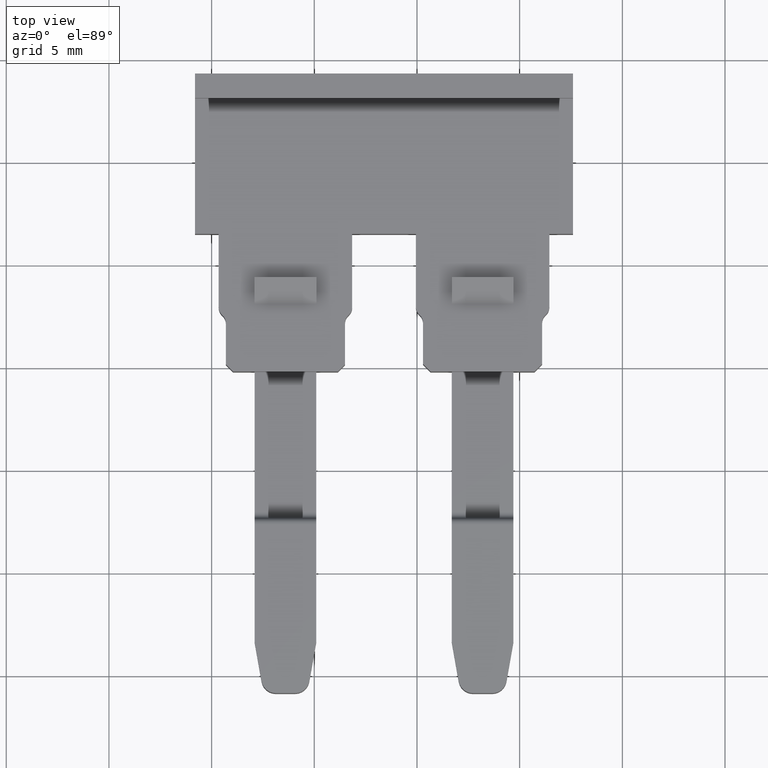
[diagram: clean part render]
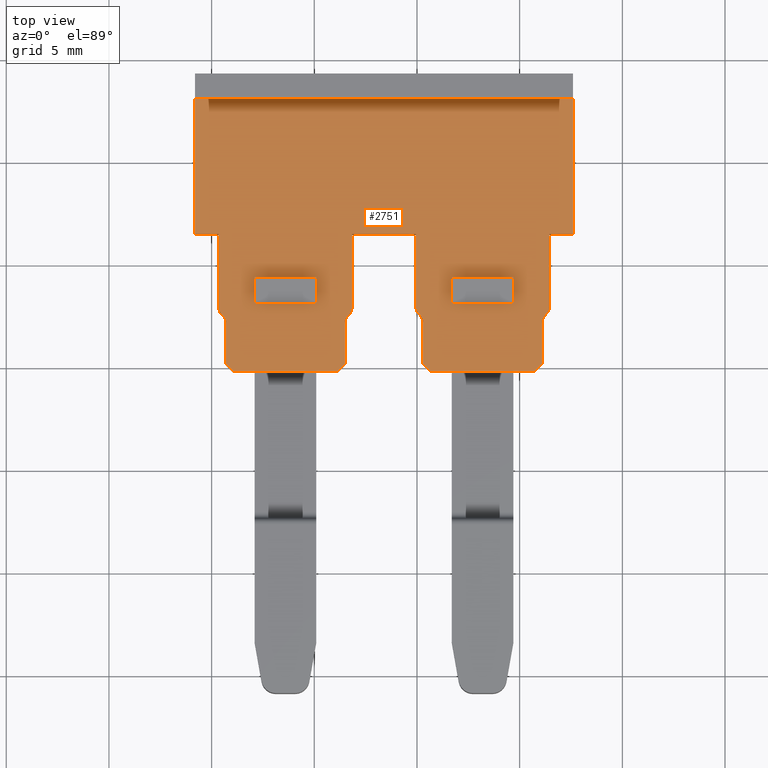
[diagram: same view with one face highlighted and labeled with its STEP entity id]
A machine part, top view. The second image highlights one B-rep face of the part: STEP entity #2751.
In plain terms, the highlighted planar face has unit normal (0, 0, -1).
Its self-contained STEP definition (entity closure, byte-faithful):
#7 = VECTOR ( 'NONE', #1052, 1000.000000000000000 ) ;
#14 = VECTOR ( 'NONE', #1072, 1000.000000000000000 ) ;
#15 = VECTOR ( 'NONE', #1033, 1000.000000000000000 ) ;
#16 = VECTOR ( 'NONE', #1014, 1000.000000000000000 ) ;
#18 = VECTOR ( 'NONE', #1043, 1000.000000000000000 ) ;
#19 = VECTOR ( 'NONE', #1063, 1000.000000000000000 ) ;
#20 = VECTOR ( 'NONE', #1075, 1000.000000000000000 ) ;
#30 = VECTOR ( 'NONE', #1012, 1000.000000000000100 ) ;
#33 = VECTOR ( 'NONE', #1060, 1000.000000000000000 ) ;
#39 = CIRCLE ( 'NONE', #49, 0.5000005154178754900 ) ;
#40 = AXIS2_PLACEMENT_3D ( 'NONE', #1148, #1168, #1171 ) ;
#45 = VECTOR ( 'NONE', #1207, 1000.000000000000000 ) ;
#49 = AXIS2_PLACEMENT_3D ( 'NONE', #1106, #1098, #1099 ) ;
#50 = CIRCLE ( 'NONE', #53, 0.5000005154178754900 ) ;
#53 = AXIS2_PLACEMENT_3D ( 'NONE', #1112, #1134, #1117 ) ;
#55 = VECTOR ( 'NONE', #1150, 1000.000000000000000 ) ;
#69 = VECTOR ( 'NONE', #1101, 1000.000000000000000 ) ;
#72 = VECTOR ( 'NONE', #1209, 1000.000000000000000 ) ;
#73 = VECTOR ( 'NONE', #1189, 1000.000000000000000 ) ;
#74 = CIRCLE ( 'NONE', #85, 0.5000005154178754900 ) ;
#76 = VECTOR ( 'NONE', #1179, 1000.000000000000000 ) ;
#81 = VECTOR ( 'NONE', #1210, 1000.000000000000100 ) ;
#84 = VECTOR ( 'NONE', #1241, 1000.000000000000100 ) ;
#85 = AXIS2_PLACEMENT_3D ( 'NONE', #1262, #1245, #1246 ) ;
#88 = CIRCLE ( 'NONE', #89, 0.5000005066464474600 ) ;
#89 = AXIS2_PLACEMENT_3D ( 'NONE', #1160, #1154, #1144 ) ;
#90 = CIRCLE ( 'NONE', #40, 0.5000005154178754900 ) ;
#95 = VECTOR ( 'NONE', #1263, 1000.000000000000000 ) ;
#104 = VECTOR ( 'NONE', #1251, 1000.000000000000000 ) ;
#107 = VECTOR ( 'NONE', #1305, 1000.000000000000000 ) ;
#110 = VECTOR ( 'NONE', #1327, 1000.000000000000000 ) ;
#111 = VECTOR ( 'NONE', #1281, 1000.000000000000000 ) ;
#115 = VECTOR ( 'NONE', #1393, 1000.000000000000000 ) ;
#116 = VECTOR ( 'NONE', #1336, 1000.000000000000000 ) ;
#119 = CIRCLE ( 'NONE', #120, 0.5000005066464474600 ) ;
#120 = AXIS2_PLACEMENT_3D ( 'NONE', #1360, #1320, #1335 ) ;
#122 = AXIS2_PLACEMENT_3D ( 'NONE', #1389, #1397, #1383 ) ;
#130 = VECTOR ( 'NONE', #1366, 1000.000000000000000 ) ;
#132 = VECTOR ( 'NONE', #1295, 1000.000000000000000 ) ;
#142 = VECTOR ( 'NONE', #1283, 1000.000000000000000 ) ;
#143 = VECTOR ( 'NONE', #1284, 1000.000000000000000 ) ;
#145 = CIRCLE ( 'NONE', #122, 0.5000005066464474600 ) ;
#149 = VECTOR ( 'NONE', #1369, 1000.000000000000000 ) ;
#155 = VECTOR ( 'NONE', #1341, 1000.000000000000100 ) ;
#157 = VECTOR ( 'NONE', #1322, 1000.000000000000000 ) ;
#268 = AXIS2_PLACEMENT_3D ( 'NONE', #666, #676, #637 ) ;
#287 = CIRCLE ( 'NONE', #342, 0.5000005066464474600 ) ;
#342 = AXIS2_PLACEMENT_3D ( 'NONE', #987, #988, #945 ) ;
#361 = VECTOR ( 'NONE', #1528, 1000.000000000000000 ) ;
#625 = FACE_BOUND ( 'NONE', #2524, .T. ) ;
#637 = DIRECTION ( 'NONE',  ( -1.000000000000000000, 0.0000000000000000000, -0.0000000000000000000 ) ) ;
#641 = PLANE ( 'NONE',  #268 ) ;
#642 = FACE_BOUND ( 'NONE', #1682, .T. ) ;
#665 = FACE_OUTER_BOUND ( 'NONE', #1673, .T. ) ;
#666 = CARTESIAN_POINT ( 'NONE',  ( 1146.994467408302400, 662.1736497164254200, 3.000000000000000000 ) ) ;
#676 = DIRECTION ( 'NONE',  ( 0.0000000000000000000, 0.0000000000000000000, -1.000000000000000000 ) ) ;
#945 = DIRECTION ( 'NONE',  ( -1.000000000000000000, 0.0000000000000000000, 0.0000000000000000000 ) ) ;
#987 = CARTESIAN_POINT ( 'NONE',  ( 1140.194468426628200, 662.1536497164254300, 3.000000000000000000 ) ) ;
#988 = DIRECTION ( 'NONE',  ( -0.0000000000000000000, -0.0000000000000000000, -1.000000000000000000 ) ) ;
#990 = CARTESIAN_POINT ( 'NONE',  ( 1140.694466376607100, 660.1392804752734900, 3.000000000000000000 ) ) ;
#1008 = LINE ( 'NONE', #1021, #16 ) ;
#1012 = DIRECTION ( 'NONE',  ( 0.7071067811865474600, -0.7071067811865474600, -0.0000000000000000000 ) ) ;
#1014 = DIRECTION ( 'NONE',  ( 0.7071156533801817900, 0.7070979088815909600, -0.0000000000000000000 ) ) ;
#1017 = LINE ( 'NONE', #1022, #18 ) ;
#1021 = CARTESIAN_POINT ( 'NONE',  ( 1146.698021157144000, 662.5643095299470800, 3.000000000000000000 ) ) ;
#1022 = CARTESIAN_POINT ( 'NONE',  ( 1146.494466901655900, 662.1736497164254200, 3.000000000000000000 ) ) ;
#1023 = LINE ( 'NONE', #1029, #15 ) ;
#1027 = LINE ( 'NONE', #990, #30 ) ;
#1029 = CARTESIAN_POINT ( 'NONE',  ( 1140.490914677786300, 662.5643095299470800, 3.000000000000000000 ) ) ;
#1033 = DIRECTION ( 'NONE',  ( 0.7071156533801817900, -0.7070979088815909600, -0.0000000000000000000 ) ) ;
#1034 = LINE ( 'NONE', #1087, #33 ) ;
#1043 = DIRECTION ( 'NONE',  ( -0.0000000000000000000, -1.000000000000000000, -0.0000000000000000000 ) ) ;
#1044 = CARTESIAN_POINT ( 'NONE',  ( 1146.844467917465200, 662.1736497164254200, 3.000000000000000000 ) ) ;
#1047 = LINE ( 'NONE', #1044, #14 ) ;
#1049 = CARTESIAN_POINT ( 'NONE',  ( 1140.344467917465200, 662.1736497164254200, 3.000000000000000000 ) ) ;
#1051 = CARTESIAN_POINT ( 'NONE',  ( 1146.844467917465200, 666.4912584401425900, 3.000000000000000000 ) ) ;
#1052 = DIRECTION ( 'NONE',  ( 1.000000000000000000, 0.0000000000000000000, 0.0000000000000000000 ) ) ;
#1060 = DIRECTION ( 'NONE',  ( 0.0000000000000000000, 1.000000000000000000, 0.0000000000000000000 ) ) ;
#1061 = LINE ( 'NONE', #1049, #20 ) ;
#1063 = DIRECTION ( 'NONE',  ( -1.000000000000000000, 0.0000000000000000000, 0.0000000000000000000 ) ) ;
#1067 = LINE ( 'NONE', #1051, #19 ) ;
#1072 = DIRECTION ( 'NONE',  ( -0.0000000000000000000, -1.000000000000000000, -0.0000000000000000000 ) ) ;
#1075 = DIRECTION ( 'NONE',  ( 0.0000000000000000000, 1.000000000000000000, 0.0000000000000000000 ) ) ;
#1076 = CARTESIAN_POINT ( 'NONE',  ( 1146.994467408302400, 666.4912584401425900, 3.000000000000000000 ) ) ;
#1087 = CARTESIAN_POINT ( 'NONE',  ( 1139.194470802330000, 662.1736497164254200, 3.000000000000000000 ) ) ;
#1090 = LINE ( 'NONE', #1076, #7 ) ;
#1098 = DIRECTION ( 'NONE',  ( -0.0000000000000000000, -0.0000000000000000000, -1.000000000000000000 ) ) ;
#1099 = DIRECTION ( 'NONE',  ( -1.000000000000000000, 0.0000000000000000000, 0.0000000000000000000 ) ) ;
#1101 = DIRECTION ( 'NONE',  ( 0.0000000000000000000, 1.000000000000000000, 0.0000000000000000000 ) ) ;
#1106 = CARTESIAN_POINT ( 'NONE',  ( 1140.844468432835100, 662.9178632849957500, 3.000000000000000000 ) ) ;
#1111 = CARTESIAN_POINT ( 'NONE',  ( 1140.694466376607100, 662.1736497164254200, 3.000000000000000000 ) ) ;
#1112 = CARTESIAN_POINT ( 'NONE',  ( 1155.944467402095400, 662.9378632849957300, 3.000000000000000000 ) ) ;
#1117 = DIRECTION ( 'NONE',  ( -1.000000000000000000, 0.0000000000000000000, 0.0000000000000000000 ) ) ;
#1118 = LINE ( 'NONE', #1170, #55 ) ;
#1131 = LINE ( 'NONE', #1111, #69 ) ;
#1134 = DIRECTION ( 'NONE',  ( -0.0000000000000000000, -0.0000000000000000000, -1.000000000000000000 ) ) ;
#1144 = DIRECTION ( 'NONE',  ( -1.000000000000000000, 0.0000000000000000000, 0.0000000000000000000 ) ) ;
#1148 = CARTESIAN_POINT ( 'NONE',  ( 1146.344467402095200, 662.9178632849957500, 3.000000000000000000 ) ) ;
#1150 = DIRECTION ( 'NONE',  ( 1.000000000000000000, 0.0000000000000000000, 0.0000000000000000000 ) ) ;
#1154 = DIRECTION ( 'NONE',  ( -0.0000000000000000000, -0.0000000000000000000, -1.000000000000000000 ) ) ;
#1159 = CARTESIAN_POINT ( 'NONE',  ( 1151.694467917465500, 663.0878760720547700, 3.000000000000000000 ) ) ;
#1160 = CARTESIAN_POINT ( 'NONE',  ( 1146.994467408302400, 662.1536497164254300, 3.000000000000000000 ) ) ;
#1161 = CARTESIAN_POINT ( 'NONE',  ( 1149.944467917465300, 662.1736497164254200, 3.000000000000000000 ) ) ;
#1168 = DIRECTION ( 'NONE',  ( -0.0000000000000000000, -0.0000000000000000000, -1.000000000000000000 ) ) ;
#1170 = CARTESIAN_POINT ( 'NONE',  ( 1146.994467408302400, 666.4912584401425900, 3.000000000000000000 ) ) ;
#1171 = DIRECTION ( 'NONE',  ( -1.000000000000000000, 0.0000000000000000000, 0.0000000000000000000 ) ) ;
#1178 = LINE ( 'NONE', #1161, #76 ) ;
#1179 = DIRECTION ( 'NONE',  ( 0.0000000000000000000, 1.000000000000000000, 0.0000000000000000000 ) ) ;
#1181 = LINE ( 'NONE', #1159, #45 ) ;
#1189 = DIRECTION ( 'NONE',  ( 1.000000000000000000, -0.0000000000000000000, 0.0000000000000000000 ) ) ;
#1193 = LINE ( 'NONE', #1195, #73 ) ;
#1195 = CARTESIAN_POINT ( 'NONE',  ( 1146.994467408302400, 673.0878760720547700, 3.000000000000000000 ) ) ;
#1200 = LINE ( 'NONE', #1206, #81 ) ;
#1206 = CARTESIAN_POINT ( 'NONE',  ( 1146.494469458323200, 660.1392804752734900, 3.000000000000000000 ) ) ;
#1207 = DIRECTION ( 'NONE',  ( 1.000000000000000000, 0.0000000000000000000, 0.0000000000000000000 ) ) ;
#1208 = LINE ( 'NONE', #1261, #84 ) ;
#1209 = DIRECTION ( 'NONE',  ( 0.7071156533801817900, -0.7070979088815909600, -0.0000000000000000000 ) ) ;
#1210 = DIRECTION ( 'NONE',  ( 0.7071067811865474600, 0.7071067811865474600, -0.0000000000000000000 ) ) ;
#1219 = CARTESIAN_POINT ( 'NONE',  ( 1150.090914677786500, 662.5843095299470600, 3.000000000000000000 ) ) ;
#1226 = LINE ( 'NONE', #1219, #72 ) ;
#1241 = DIRECTION ( 'NONE',  ( 0.7071067811865474600, 0.7071067811865474600, -0.0000000000000000000 ) ) ;
#1243 = LINE ( 'NONE', #1258, #95 ) ;
#1245 = DIRECTION ( 'NONE',  ( -0.0000000000000000000, -0.0000000000000000000, -1.000000000000000000 ) ) ;
#1246 = DIRECTION ( 'NONE',  ( -1.000000000000000000, 0.0000000000000000000, 0.0000000000000000000 ) ) ;
#1251 = DIRECTION ( 'NONE',  ( 0.0000000000000000000, 1.000000000000000000, -3.336006684570865400E-016 ) ) ;
#1258 = CARTESIAN_POINT ( 'NONE',  ( 1156.298021157144100, 662.5843095299470600, 3.000000000000000000 ) ) ;
#1261 = CARTESIAN_POINT ( 'NONE',  ( 1156.094469458323600, 660.1592804752734800, 3.000000000000000000 ) ) ;
#1262 = CARTESIAN_POINT ( 'NONE',  ( 1150.444468432835300, 662.9378632849957300, 3.000000000000000000 ) ) ;
#1263 = DIRECTION ( 'NONE',  ( 0.7071156533801817900, 0.7070979088815909600, -0.0000000000000000000 ) ) ;
#1273 = LINE ( 'NONE', #1275, #104 ) ;
#1274 = LINE ( 'NONE', #1285, #132 ) ;
#1275 = CARTESIAN_POINT ( 'NONE',  ( 1145.094467917465200, 663.0878760720547700, 3.000000000000000000 ) ) ;
#1281 = DIRECTION ( 'NONE',  ( 0.0000000000000000000, 1.000000000000000000, -3.336006684570865400E-016 ) ) ;
#1283 = DIRECTION ( 'NONE',  ( 0.0000000000000000000, 1.000000000000000000, -3.336006684570865400E-016 ) ) ;
#1284 = DIRECTION ( 'NONE',  ( -0.0000000000000000000, -1.000000000000000000, -0.0000000000000000000 ) ) ;
#1285 = CARTESIAN_POINT ( 'NONE',  ( 1146.994467408302400, 659.7892820011524000, 3.000000000000000000 ) ) ;
#1286 = CARTESIAN_POINT ( 'NONE',  ( 1156.094466901656000, 662.1736497164254200, 3.000000000000000000 ) ) ;
#1287 = LINE ( 'NONE', #1297, #107 ) ;
#1290 = CARTESIAN_POINT ( 'NONE',  ( 1151.694467917465500, 663.0878760720547700, 3.000000000000000000 ) ) ;
#1295 = DIRECTION ( 'NONE',  ( -1.000000000000000000, 0.0000000000000000000, -0.0000000000000000000 ) ) ;
#1297 = CARTESIAN_POINT ( 'NONE',  ( 1150.294466376607300, 662.1736497164254200, 3.000000000000000000 ) ) ;
#1303 = LINE ( 'NONE', #1319, #142 ) ;
#1305 = DIRECTION ( 'NONE',  ( 0.0000000000000000000, 1.000000000000000000, 0.0000000000000000000 ) ) ;
#1316 = LINE ( 'NONE', #1286, #143 ) ;
#1317 = LINE ( 'NONE', #1290, #111 ) ;
#1319 = CARTESIAN_POINT ( 'NONE',  ( 1142.094467917465400, 663.0878760720547700, 3.000000000000000000 ) ) ;
#1320 = DIRECTION ( 'NONE',  ( -0.0000000000000000000, -0.0000000000000000000, -1.000000000000000000 ) ) ;
#1322 = DIRECTION ( 'NONE',  ( 0.0000000000000000000, 1.000000000000000000, -3.336006684570865400E-016 ) ) ;
#1325 = CARTESIAN_POINT ( 'NONE',  ( 1142.094467917465400, 663.0878760720547700, 3.000000000000000000 ) ) ;
#1326 = CARTESIAN_POINT ( 'NONE',  ( 1156.444467917465300, 662.1736497164254200, 3.000000000000000000 ) ) ;
#1327 = DIRECTION ( 'NONE',  ( -0.0000000000000000000, -1.000000000000000000, -0.0000000000000000000 ) ) ;
#1333 = LINE ( 'NONE', #1340, #155 ) ;
#1335 = DIRECTION ( 'NONE',  ( -1.000000000000000000, 0.0000000000000000000, 0.0000000000000000000 ) ) ;
#1336 = DIRECTION ( 'NONE',  ( 1.000000000000000000, 0.0000000000000000000, 0.0000000000000000000 ) ) ;
#1338 = LINE ( 'NONE', #1365, #130 ) ;
#1340 = CARTESIAN_POINT ( 'NONE',  ( 1150.294466376607300, 660.1592804752734800, 3.000000000000000000 ) ) ;
#1341 = DIRECTION ( 'NONE',  ( 0.7071067811865474600, -0.7071067811865474600, -0.0000000000000000000 ) ) ;
#1347 = LINE ( 'NONE', #1381, #149 ) ;
#1351 = LINE ( 'NONE', #1359, #157 ) ;
#1353 = LINE ( 'NONE', #1326, #110 ) ;
#1358 = LINE ( 'NONE', #1325, #116 ) ;
#1359 = CARTESIAN_POINT ( 'NONE',  ( 1154.694467917465300, 663.0878760720547700, 3.000000000000000000 ) ) ;
#1360 = CARTESIAN_POINT ( 'NONE',  ( 1149.794468426628100, 662.1736497164254200, 3.000000000000000000 ) ) ;
#1365 = CARTESIAN_POINT ( 'NONE',  ( 1142.094467917465400, 664.3878760720547200, 2.999999999999999600 ) ) ;
#1366 = DIRECTION ( 'NONE',  ( 1.000000000000000000, 0.0000000000000000000, 0.0000000000000000000 ) ) ;
#1369 = DIRECTION ( 'NONE',  ( 1.000000000000000000, 0.0000000000000000000, 0.0000000000000000000 ) ) ;
#1373 = LINE ( 'NONE', #1391, #115 ) ;
#1381 = CARTESIAN_POINT ( 'NONE',  ( 1151.694467917465500, 664.3878760720547200, 2.999999999999999600 ) ) ;
#1383 = DIRECTION ( 'NONE',  ( -1.000000000000000000, 0.0000000000000000000, 0.0000000000000000000 ) ) ;
#1389 = CARTESIAN_POINT ( 'NONE',  ( 1156.594467408302300, 662.1736497164254200, 3.000000000000000000 ) ) ;
#1391 = CARTESIAN_POINT ( 'NONE',  ( 1146.994467408302400, 659.7892820011524000, 3.000000000000000000 ) ) ;
#1393 = DIRECTION ( 'NONE',  ( -1.000000000000000000, 0.0000000000000000000, 0.0000000000000000000 ) ) ;
#1397 = DIRECTION ( 'NONE',  ( -0.0000000000000000000, -0.0000000000000000000, -1.000000000000000000 ) ) ;
#1504 = LINE ( 'NONE', #1515, #361 ) ;
#1515 = CARTESIAN_POINT ( 'NONE',  ( 1157.594465032600300, 662.1736497164254200, 3.000000000000000000 ) ) ;
#1528 = DIRECTION ( 'NONE',  ( -0.0000000000000000000, -1.000000000000000000, -0.0000000000000000000 ) ) ;
#1673 = EDGE_LOOP ( 'NONE', ( #2166, #2142, #2177, #2095, #2207, #2106, #2175, #2128, #2183, #2174, #2131, #2152, #2145, #2116, #2135, #2202, #2107, #2120, #2182, #2119, #2138, #2149, #2133, #2111, #2112, #2136, #2211, #2140, #2092, #2115, #2122, #2172 ) ) ;
#1682 = EDGE_LOOP ( 'NONE', ( #2147, #2198, #2210, #2173 ) ) ;
#1702 = VERTEX_POINT ( 'NONE', #2370 ) ;
#1705 = VERTEX_POINT ( 'NONE', #2489 ) ;
#1706 = VERTEX_POINT ( 'NONE', #1851 ) ;
#1728 = VERTEX_POINT ( 'NONE', #2394 ) ;
#1731 = VERTEX_POINT ( 'NONE', #2365 ) ;
#1749 = VERTEX_POINT ( 'NONE', #2399 ) ;
#1755 = VERTEX_POINT ( 'NONE', #2384 ) ;
#1757 = VERTEX_POINT ( 'NONE', #2352 ) ;
#1759 = VERTEX_POINT ( 'NONE', #2374 ) ;
#1763 = VERTEX_POINT ( 'NONE', #2456 ) ;
#1765 = VERTEX_POINT ( 'NONE', #2428 ) ;
#1772 = VERTEX_POINT ( 'NONE', #2429 ) ;
#1774 = VERTEX_POINT ( 'NONE', #2413 ) ;
#1775 = VERTEX_POINT ( 'NONE', #2415 ) ;
#1776 = VERTEX_POINT ( 'NONE', #2426 ) ;
#1777 = VERTEX_POINT ( 'NONE', #2438 ) ;
#1778 = VERTEX_POINT ( 'NONE', #2417 ) ;
#1779 = VERTEX_POINT ( 'NONE', #2416 ) ;
#1780 = VERTEX_POINT ( 'NONE', #2453 ) ;
#1781 = VERTEX_POINT ( 'NONE', #2406 ) ;
#1782 = VERTEX_POINT ( 'NONE', #2420 ) ;
#1783 = VERTEX_POINT ( 'NONE', #2445 ) ;
#1785 = VERTEX_POINT ( 'NONE', #2427 ) ;
#1788 = VERTEX_POINT ( 'NONE', #2430 ) ;
#1790 = VERTEX_POINT ( 'NONE', #2462 ) ;
#1791 = VERTEX_POINT ( 'NONE', #2459 ) ;
#1793 = VERTEX_POINT ( 'NONE', #2439 ) ;
#1795 = VERTEX_POINT ( 'NONE', #2421 ) ;
#1798 = VERTEX_POINT ( 'NONE', #2408 ) ;
#1800 = VERTEX_POINT ( 'NONE', #2431 ) ;
#1801 = VERTEX_POINT ( 'NONE', #2422 ) ;
#1804 = VERTEX_POINT ( 'NONE', #2441 ) ;
#1808 = VERTEX_POINT ( 'NONE', #2448 ) ;
#1810 = VERTEX_POINT ( 'NONE', #2464 ) ;
#1812 = VERTEX_POINT ( 'NONE', #2435 ) ;
#1815 = VERTEX_POINT ( 'NONE', #2432 ) ;
#1816 = VERTEX_POINT ( 'NONE', #2433 ) ;
#1822 = VERTEX_POINT ( 'NONE', #2468 ) ;
#1825 = VERTEX_POINT ( 'NONE', #2425 ) ;
#1837 = VERTEX_POINT ( 'NONE', #2475 ) ;
#1851 = CARTESIAN_POINT ( 'NONE',  ( 1146.698018939051500, 662.5643073119101700, 3.000000000000000000 ) ) ;
#2092 = ORIENTED_EDGE ( 'NONE', *, *, #2588, .F. ) ;
#2095 = ORIENTED_EDGE ( 'NONE', *, *, #2634, .F. ) ;
#2106 = ORIENTED_EDGE ( 'NONE', *, *, #2662, .F. ) ;
#2107 = ORIENTED_EDGE ( 'NONE', *, *, #2578, .T. ) ;
#2111 = ORIENTED_EDGE ( 'NONE', *, *, #2624, .F. ) ;
#2112 = ORIENTED_EDGE ( 'NONE', *, *, #2606, .T. ) ;
#2115 = ORIENTED_EDGE ( 'NONE', *, *, #2552, .F. ) ;
#2116 = ORIENTED_EDGE ( 'NONE', *, *, #2876, .F. ) ;
#2118 = ORIENTED_EDGE ( 'NONE', *, *, #2620, .F. ) ;
#2119 = ORIENTED_EDGE ( 'NONE', *, *, #2540, .T. ) ;
#2120 = ORIENTED_EDGE ( 'NONE', *, *, #2557, .F. ) ;
#2121 = ORIENTED_EDGE ( 'NONE', *, *, #2628, .T. ) ;
#2122 = ORIENTED_EDGE ( 'NONE', *, *, #2553, .F. ) ;
#2123 = ORIENTED_EDGE ( 'NONE', *, *, #2650, .T. ) ;
#2127 = ORIENTED_EDGE ( 'NONE', *, *, #2639, .F. ) ;
#2128 = ORIENTED_EDGE ( 'NONE', *, *, #2629, .F. ) ;
#2131 = ORIENTED_EDGE ( 'NONE', *, *, #2574, .F. ) ;
#2133 = ORIENTED_EDGE ( 'NONE', *, *, #2539, .T. ) ;
#2135 = ORIENTED_EDGE ( 'NONE', *, *, #2599, .F. ) ;
#2136 = ORIENTED_EDGE ( 'NONE', *, *, #2543, .F. ) ;
#2138 = ORIENTED_EDGE ( 'NONE', *, *, #2829, .T. ) ;
#2140 = ORIENTED_EDGE ( 'NONE', *, *, #2536, .T. ) ;
#2142 = ORIENTED_EDGE ( 'NONE', *, *, #2598, .T. ) ;
#2145 = ORIENTED_EDGE ( 'NONE', *, *, #2547, .T. ) ;
#2147 = ORIENTED_EDGE ( 'NONE', *, *, #2603, .F. ) ;
#2149 = ORIENTED_EDGE ( 'NONE', *, *, #2572, .F. ) ;
#2152 = ORIENTED_EDGE ( 'NONE', *, *, #2641, .F. ) ;
#2166 = ORIENTED_EDGE ( 'NONE', *, *, #2611, .F. ) ;
#2172 = ORIENTED_EDGE ( 'NONE', *, *, #2584, .F. ) ;
#2173 = ORIENTED_EDGE ( 'NONE', *, *, #2646, .F. ) ;
#2174 = ORIENTED_EDGE ( 'NONE', *, *, #2617, .T. ) ;
#2175 = ORIENTED_EDGE ( 'NONE', *, *, #2608, .T. ) ;
#2177 = ORIENTED_EDGE ( 'NONE', *, *, #2648, .T. ) ;
#2182 = ORIENTED_EDGE ( 'NONE', *, *, #2573, .F. ) ;
#2183 = ORIENTED_EDGE ( 'NONE', *, *, #2659, .T. ) ;
#2198 = ORIENTED_EDGE ( 'NONE', *, *, #2626, .T. ) ;
#2202 = ORIENTED_EDGE ( 'NONE', *, *, #2550, .F. ) ;
#2207 = ORIENTED_EDGE ( 'NONE', *, *, #2651, .T. ) ;
#2210 = ORIENTED_EDGE ( 'NONE', *, *, #2657, .T. ) ;
#2211 = ORIENTED_EDGE ( 'NONE', *, *, #2579, .T. ) ;
#2352 = CARTESIAN_POINT ( 'NONE',  ( 1142.094467917465400, 664.3878760720547200, 3.000000000000000000 ) ) ;
#2365 = CARTESIAN_POINT ( 'NONE',  ( 1149.944467917465300, 666.4912584401425900, 3.000000000000000000 ) ) ;
#2370 = CARTESIAN_POINT ( 'NONE',  ( 1146.844467917465200, 666.4912584401425900, 3.000000000000000000 ) ) ;
#2374 = CARTESIAN_POINT ( 'NONE',  ( 1157.594465032600300, 666.4912584401425900, 3.000000000000000000 ) ) ;
#2384 = CARTESIAN_POINT ( 'NONE',  ( 1146.844467917465200, 662.9178667459766500, 3.000000000000000000 ) ) ;
#2394 = CARTESIAN_POINT ( 'NONE',  ( 1146.640918515522300, 662.5072083212701300, 3.000000000000000000 ) ) ;
#2399 = CARTESIAN_POINT ( 'NONE',  ( 1149.944467917441200, 662.9378632849957300, 3.000000000000000000 ) ) ;
#2406 = CARTESIAN_POINT ( 'NONE',  ( 1157.594465032600300, 673.0878760720547700, 3.000000000000000000 ) ) ;
#2408 = CARTESIAN_POINT ( 'NONE',  ( 1156.094466901656000, 662.1736497164254200, 3.000000000000000000 ) ) ;
#2413 = CARTESIAN_POINT ( 'NONE',  ( 1150.294466376607300, 660.1592804752734800, 3.000000000000000400 ) ) ;
#2415 = CARTESIAN_POINT ( 'NONE',  ( 1146.144470984202100, 659.7892820011524000, 3.000000000000000400 ) ) ;
#2416 = CARTESIAN_POINT ( 'NONE',  ( 1140.344467917441300, 662.9178632849957500, 3.000000000000000000 ) ) ;
#2417 = CARTESIAN_POINT ( 'NONE',  ( 1139.194470802330000, 666.4912584401425900, 3.000000000000000000 ) ) ;
#2420 = CARTESIAN_POINT ( 'NONE',  ( 1155.724470984202500, 659.7892820011524000, 3.000000000000000000 ) ) ;
#2421 = CARTESIAN_POINT ( 'NONE',  ( 1140.344467917465200, 666.4912584401425900, 3.000000000000000000 ) ) ;
#2422 = CARTESIAN_POINT ( 'NONE',  ( 1145.094467917465200, 663.0878760720547700, 3.000000000000000000 ) ) ;
#2425 = CARTESIAN_POINT ( 'NONE',  ( 1154.694467917465300, 664.3878760720547200, 2.999999999999999600 ) ) ;
#2426 = CARTESIAN_POINT ( 'NONE',  ( 1145.094467917465200, 664.3878760720547200, 2.999999999999999600 ) ) ;
#2427 = CARTESIAN_POINT ( 'NONE',  ( 1140.694467654940800, 662.1536497164254300, 3.000000000000000000 ) ) ;
#2428 = CARTESIAN_POINT ( 'NONE',  ( 1140.694466376607100, 660.1392804752734900, 3.000000000000000400 ) ) ;
#2429 = CARTESIAN_POINT ( 'NONE',  ( 1150.294467654940900, 662.1736497164254200, 3.000000000000000000 ) ) ;
#2430 = CARTESIAN_POINT ( 'NONE',  ( 1140.548017319408200, 662.5072083212701300, 3.000000000000000000 ) ) ;
#2431 = CARTESIAN_POINT ( 'NONE',  ( 1139.194470802330000, 673.0878760720547700, 3.000000000000000000 ) ) ;
#2432 = CARTESIAN_POINT ( 'NONE',  ( 1154.694467917465300, 663.0878760720547700, 3.000000000000000000 ) ) ;
#2433 = CARTESIAN_POINT ( 'NONE',  ( 1142.094467917465400, 663.0878760720547700, 3.000000000000000000 ) ) ;
#2435 = CARTESIAN_POINT ( 'NONE',  ( 1156.240918515522300, 662.5272083212702200, 3.000000000000000000 ) ) ;
#2438 = CARTESIAN_POINT ( 'NONE',  ( 1146.494466901655900, 662.1536497164254300, 3.000000000000000000 ) ) ;
#2439 = CARTESIAN_POINT ( 'NONE',  ( 1156.094468606100700, 660.1592796230510200, 3.000000000000000400 ) ) ;
#2441 = CARTESIAN_POINT ( 'NONE',  ( 1150.148017319408400, 662.5272083212702200, 3.000000000000000000 ) ) ;
#2445 = CARTESIAN_POINT ( 'NONE',  ( 1151.694467917465500, 663.0878760720547700, 3.000000000000000000 ) ) ;
#2448 = CARTESIAN_POINT ( 'NONE',  ( 1140.490916895879100, 662.5643073119101700, 3.000000000000000000 ) ) ;
#2453 = CARTESIAN_POINT ( 'NONE',  ( 1156.444467917465300, 662.9378667459767500, 3.000000000000000000 ) ) ;
#2456 = CARTESIAN_POINT ( 'NONE',  ( 1150.664464850728600, 659.7892820011524000, 3.000000000000000000 ) ) ;
#2459 = CARTESIAN_POINT ( 'NONE',  ( 1156.298018939051600, 662.5843073119102700, 3.000000000000000000 ) ) ;
#2462 = CARTESIAN_POINT ( 'NONE',  ( 1150.090916895878800, 662.5843073119102700, 3.000000000000000000 ) ) ;
#2464 = CARTESIAN_POINT ( 'NONE',  ( 1156.444467917465300, 666.4912584401425900, 3.000000000000000000 ) ) ;
#2468 = CARTESIAN_POINT ( 'NONE',  ( 1151.694467917465500, 664.3878760720547200, 3.000000000000000000 ) ) ;
#2475 = CARTESIAN_POINT ( 'NONE',  ( 1141.044464850728200, 659.7892820011524000, 3.000000000000000000 ) ) ;
#2489 = CARTESIAN_POINT ( 'NONE',  ( 1146.494468606101000, 660.1392796230510400, 3.000000000000000400 ) ) ;
#2524 = EDGE_LOOP ( 'NONE', ( #2127, #2121, #2123, #2118 ) ) ;
#2536 = EDGE_CURVE ( 'NONE', #1728, #1706, #1008, .T. ) ;
#2539 = EDGE_CURVE ( 'NONE', #1765, #1837, #1027, .T. ) ;
#2540 = EDGE_CURVE ( 'NONE', #1808, #1788, #1023, .T. ) ;
#2543 = EDGE_CURVE ( 'NONE', #1777, #1705, #1017, .T. ) ;
#2547 = EDGE_CURVE ( 'NONE', #1810, #1759, #1090, .T. ) ;
#2550 = EDGE_CURVE ( 'NONE', #1778, #1800, #1034, .T. ) ;
#2552 = EDGE_CURVE ( 'NONE', #1702, #1755, #1047, .T. ) ;
#2553 = EDGE_CURVE ( 'NONE', #1731, #1702, #1067, .T. ) ;
#2557 = EDGE_CURVE ( 'NONE', #1779, #1795, #1061, .T. ) ;
#2572 = EDGE_CURVE ( 'NONE', #1765, #1785, #1131, .T. ) ;
#2573 = EDGE_CURVE ( 'NONE', #1808, #1779, #39, .T. ) ;
#2574 = EDGE_CURVE ( 'NONE', #1780, #1791, #50, .T. ) ;
#2578 = EDGE_CURVE ( 'NONE', #1778, #1795, #1118, .T. ) ;
#2579 = EDGE_CURVE ( 'NONE', #1777, #1728, #88, .T. ) ;
#2584 = EDGE_CURVE ( 'NONE', #1749, #1731, #1178, .T. ) ;
#2588 = EDGE_CURVE ( 'NONE', #1755, #1706, #90, .T. ) ;
#2598 = EDGE_CURVE ( 'NONE', #1790, #1804, #1226, .T. ) ;
#2599 = EDGE_CURVE ( 'NONE', #1800, #1781, #1193, .T. ) ;
#2603 = EDGE_CURVE ( 'NONE', #1783, #1815, #1181, .T. ) ;
#2606 = EDGE_CURVE ( 'NONE', #1775, #1705, #1200, .T. ) ;
#2608 = EDGE_CURVE ( 'NONE', #1782, #1793, #1208, .T. ) ;
#2611 = EDGE_CURVE ( 'NONE', #1790, #1749, #74, .T. ) ;
#2617 = EDGE_CURVE ( 'NONE', #1812, #1791, #1243, .T. ) ;
#2620 = EDGE_CURVE ( 'NONE', #1801, #1776, #1273, .T. ) ;
#2624 = EDGE_CURVE ( 'NONE', #1775, #1837, #1274, .T. ) ;
#2626 = EDGE_CURVE ( 'NONE', #1783, #1822, #1317, .T. ) ;
#2628 = EDGE_CURVE ( 'NONE', #1816, #1757, #1303, .T. ) ;
#2629 = EDGE_CURVE ( 'NONE', #1798, #1793, #1316, .T. ) ;
#2634 = EDGE_CURVE ( 'NONE', #1774, #1772, #1287, .T. ) ;
#2639 = EDGE_CURVE ( 'NONE', #1816, #1801, #1358, .T. ) ;
#2641 = EDGE_CURVE ( 'NONE', #1810, #1780, #1353, .T. ) ;
#2646 = EDGE_CURVE ( 'NONE', #1815, #1825, #1351, .T. ) ;
#2648 = EDGE_CURVE ( 'NONE', #1804, #1772, #119, .T. ) ;
#2650 = EDGE_CURVE ( 'NONE', #1757, #1776, #1338, .T. ) ;
#2651 = EDGE_CURVE ( 'NONE', #1774, #1763, #1333, .T. ) ;
#2657 = EDGE_CURVE ( 'NONE', #1822, #1825, #1347, .T. ) ;
#2659 = EDGE_CURVE ( 'NONE', #1798, #1812, #145, .T. ) ;
#2662 = EDGE_CURVE ( 'NONE', #1782, #1763, #1373, .T. ) ;
#2751 = ADVANCED_FACE ( 'NONE', ( #625, #642, #665 ), #641, .F. ) ;
#2829 = EDGE_CURVE ( 'NONE', #1788, #1785, #287, .T. ) ;
#2876 = EDGE_CURVE ( 'NONE', #1781, #1759, #1504, .T. ) ;